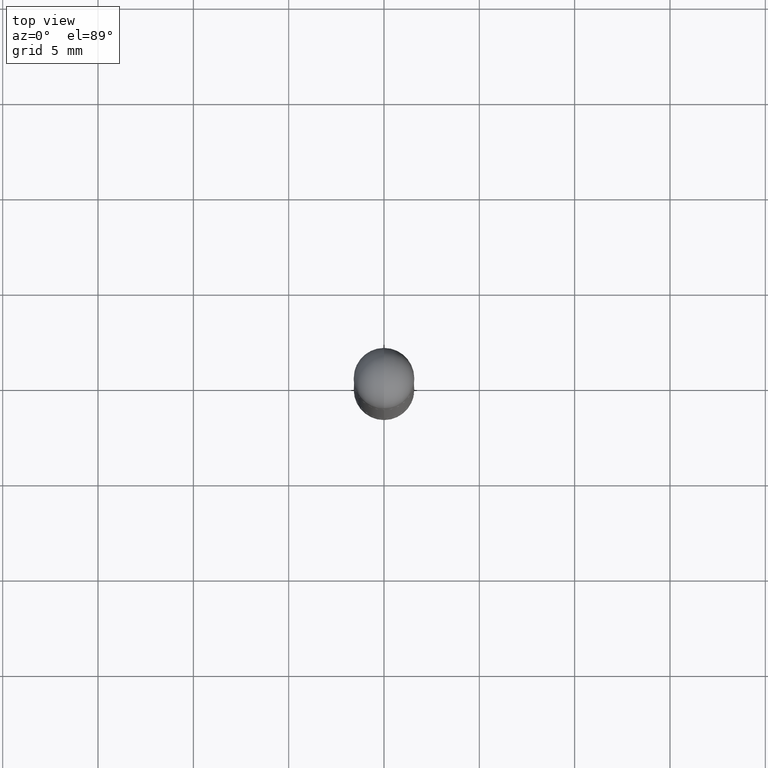
[diagram: clean part render]
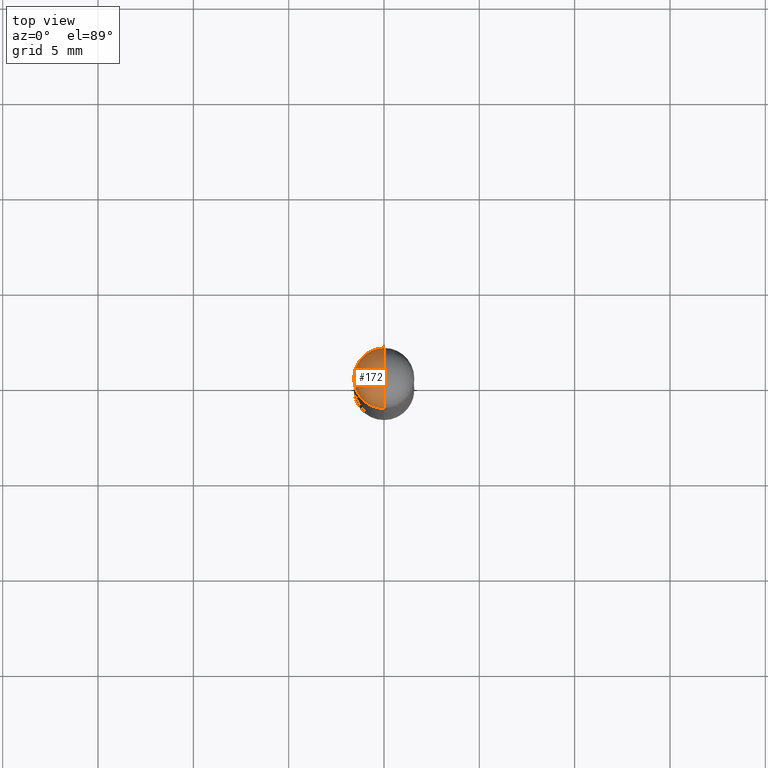
[diagram: same view with one face highlighted and labeled with its STEP entity id]
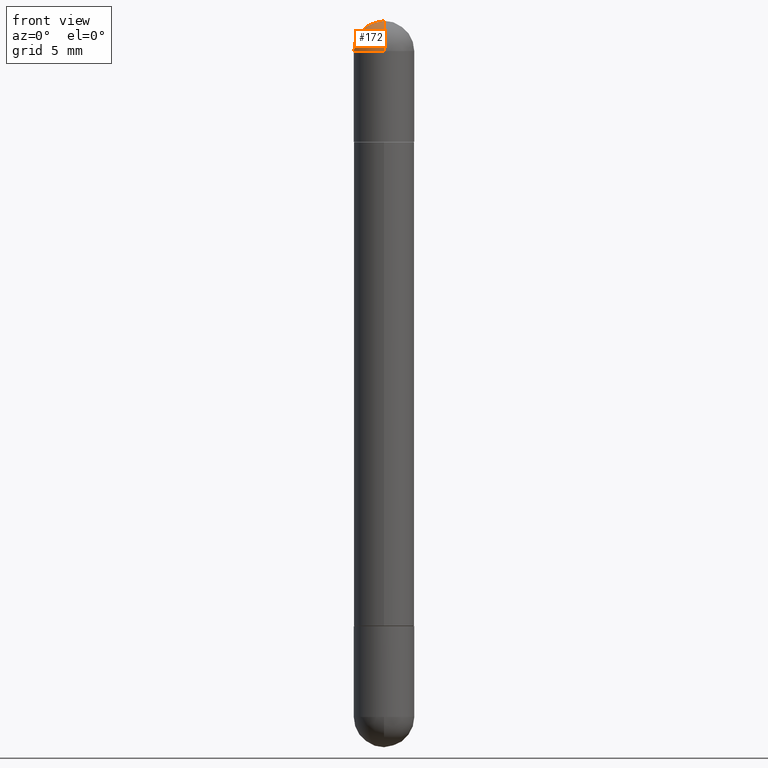
[diagram: same view with one face highlighted and labeled with its STEP entity id]
A machine part, top view. The second image highlights one B-rep face of the part: STEP entity #172.
A second angle (front view) of the same face is appended — the face is thin or edge-on in the first view.
In plain terms, the highlighted spherical surface has radius 1.5875 mm.
Its self-contained STEP definition (entity closure, byte-faithful):
#18 = CIRCLE ( 'NONE', #174, 0.06250000000000001388 ) ;
#105 = VERTEX_POINT ( 'NONE', #775 ) ;
#124 = VERTEX_POINT ( 'NONE', #779 ) ;
#136 = DIRECTION ( 'NONE',  ( 6.982962677686266711E-15, 1.000000000000000000, 3.551402391763529759E-15 ) ) ;
#138 = EDGE_CURVE ( 'NONE', #739, #124, #18, .T. ) ;
#154 = DIRECTION ( 'NONE',  ( 2.445468806185136597E-29, -3.491481338843145583E-15, 1.000000000000000000 ) ) ;
#172 = ADVANCED_FACE ( 'NONE', ( #717 ), #753, .T. ) ;
#174 = AXIS2_PLACEMENT_3D ( 'NONE', #655, #154, #282 ) ;
#200 = CARTESIAN_POINT ( 'NONE',  ( 3.515361408891134418E-29, -5.019004424587023131E-15, -0.06250000000000022204 ) ) ;
#205 = CARTESIAN_POINT ( 'NONE',  ( 3.184241630977248732E-29, -5.493186792727072638E-15, -0.06250000000000022204 ) ) ;
#208 = AXIS2_PLACEMENT_3D ( 'NONE', #200, #712, #272 ) ;
#235 = ORIENTED_EDGE ( 'NONE', *, *, #278, .T. ) ;
#256 = DIRECTION ( 'NONE',  ( 1.000000000000000000, -6.860497997771530774E-15, -4.840798879624142912E-29 ) ) ;
#261 = EDGE_CURVE ( 'NONE', #105, #739, #309, .T. ) ;
#264 = AXIS2_PLACEMENT_3D ( 'NONE', #205, #256, #347 ) ;
#272 = DIRECTION ( 'NONE',  ( 1.000000000000000000, -6.982962677686261189E-15, 0.000000000000000000 ) ) ;
#277 = AXIS2_PLACEMENT_3D ( 'NONE', #515, #433, #136 ) ;
#278 = EDGE_CURVE ( 'NONE', #124, #487, #555, .T. ) ;
#282 = DIRECTION ( 'NONE',  ( 1.000000000000000000, -6.982962677686261189E-15, 0.000000000000000000 ) ) ;
#309 = CIRCLE ( 'NONE', #528, 0.06250000000000022204 ) ;
#319 = EDGE_CURVE ( 'NONE', #105, #487, #421, .T. ) ;
#347 = DIRECTION ( 'NONE',  ( 6.860497997771530774E-15, 1.000000000000000000, 0.000000000000000000 ) ) ;
#377 = CARTESIAN_POINT ( 'NONE',  ( -4.287811248606879849E-16, -0.06250000000000537070, -0.06250000000000044409 ) ) ;
#421 = CIRCLE ( 'NONE', #264, 0.06250000000000022204 ) ;
#433 = DIRECTION ( 'NONE',  ( 1.000000000000000000, -6.982962677686266711E-15, -4.883557194083112901E-29 ) ) ;
#447 = ORIENTED_EDGE ( 'NONE', *, *, #138, .T. ) ;
#453 = ORIENTED_EDGE ( 'NONE', *, *, #319, .F. ) ;
#487 = VERTEX_POINT ( 'NONE', #377 ) ;
#512 = DIRECTION ( 'NONE',  ( -6.982962677686266711E-15, -1.000000000000000000, 0.000000000000000000 ) ) ;
#515 = CARTESIAN_POINT ( 'NONE',  ( 3.184241630977248732E-29, -5.493186792727072638E-15, -0.06250000000000022204 ) ) ;
#528 = AXIS2_PLACEMENT_3D ( 'NONE', #812, #581, #512 ) ;
#555 = CIRCLE ( 'NONE', #208, 0.06250000000000001388 ) ;
#581 = DIRECTION ( 'NONE',  ( -1.000000000000000000, 6.982962677686265922E-15, 4.883557194083112340E-29 ) ) ;
#585 = EDGE_LOOP ( 'NONE', ( #453, #760, #447, #235 ) ) ;
#655 = CARTESIAN_POINT ( 'NONE',  ( 3.515361408891134418E-29, -5.019004424587023131E-15, -0.06250000000000022204 ) ) ;
#712 = DIRECTION ( 'NONE',  ( 2.445468806185136597E-29, -3.491481338843145583E-15, 1.000000000000000000 ) ) ;
#717 = FACE_OUTER_BOUND ( 'NONE', #585, .T. ) ;
#736 = CARTESIAN_POINT ( 'NONE',  ( 4.364351673554259849E-16, 0.06249999999999485828, -0.06250000000000000000 ) ) ;
#739 = VERTEX_POINT ( 'NONE', #736 ) ;
#753 = SPHERICAL_SURFACE ( 'NONE', #277, 0.06250000000000022204 ) ;
#760 = ORIENTED_EDGE ( 'NONE', *, *, #261, .T. ) ;
#775 = CARTESIAN_POINT ( 'NONE',  ( 3.339755826017505569E-29, -5.707577355157435366E-15, 0.000000000000000000 ) ) ;
#779 = CARTESIAN_POINT ( 'NONE',  ( -0.06250000000000001388, -4.262896924209757473E-15, -0.06250000000000022204 ) ) ;
#812 = CARTESIAN_POINT ( 'NONE',  ( 3.184241630977248732E-29, -5.493186792727072638E-15, -0.06250000000000022204 ) ) ;